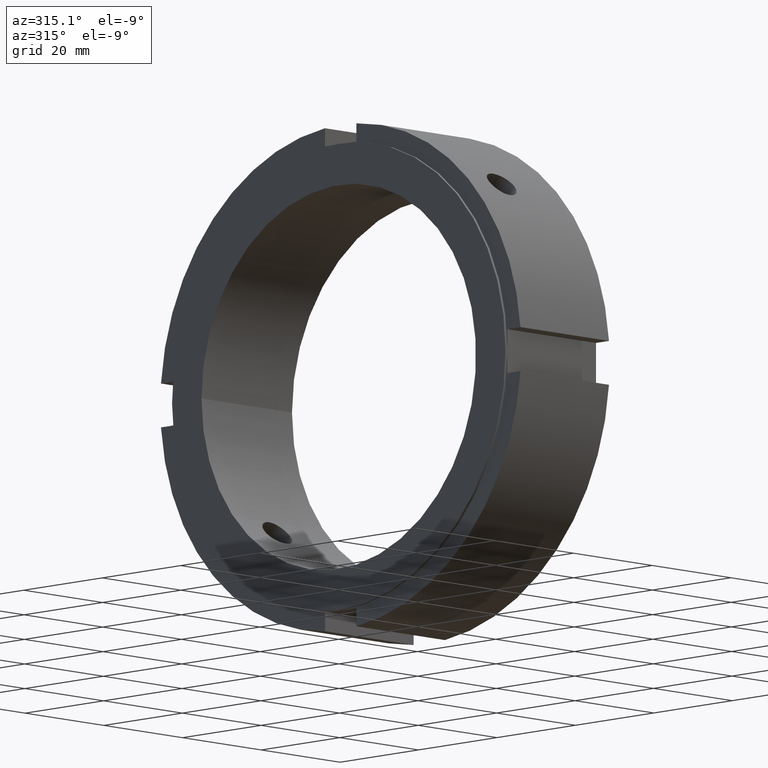
[diagram: clean part render]
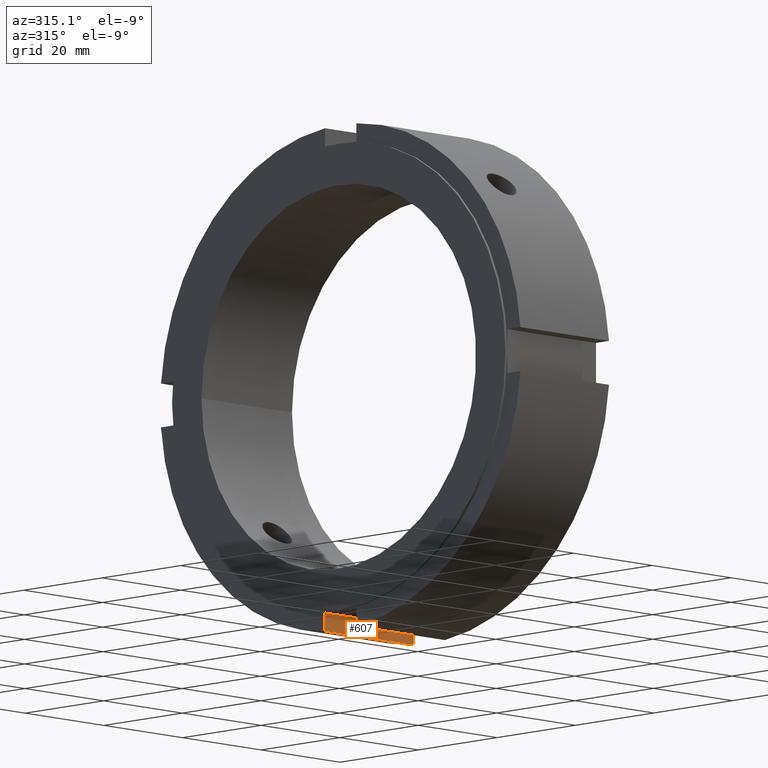
[diagram: same view with one face highlighted and labeled with its STEP entity id]
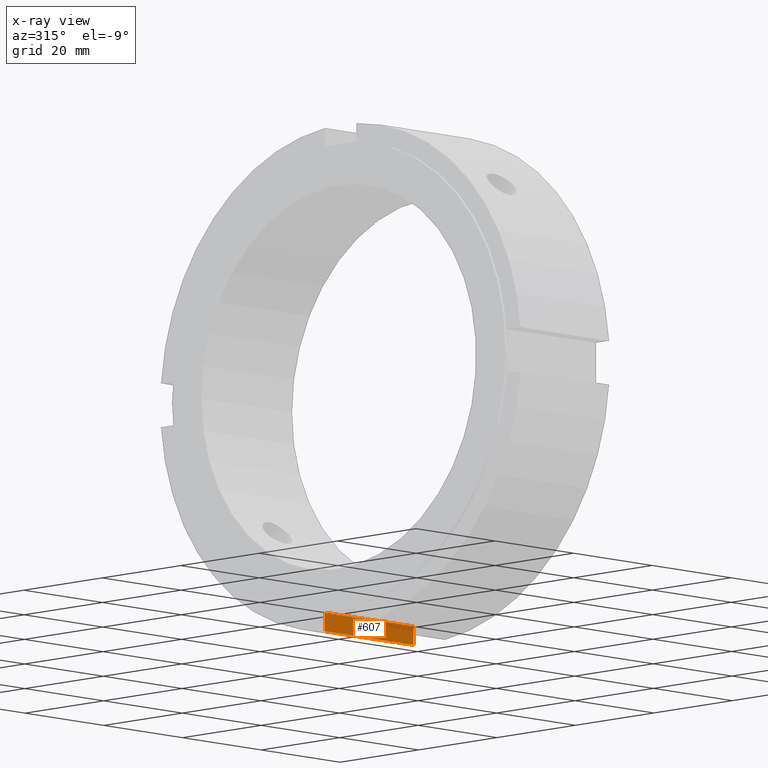
[diagram: x-ray of the same camera — body ghosted, the highlighted face saturated]
A machine part, auxiliary view. The second image highlights one B-rep face of the part: STEP entity #607.
The next image is the same camera in x-ray: the body ghosted, the highlighted face saturated — about 13% of this face is hidden behind the body in this view.
In plain terms, the highlighted planar face has unit normal (0, 1, 0).
Its self-contained STEP definition (entity closure, byte-faithful):
#568=CARTESIAN_POINT('',(22.999999999999989,3.99999999999999,-46.000000000000007));
#569=DIRECTION('',(0.0,1.0,0.0));
#570=DIRECTION('',(1.0,0.0,0.0));
#571=AXIS2_PLACEMENT_3D('',#568,#569,#570);
#572=PLANE('',#571);
#573=CARTESIAN_POINT('',(0.499999999999989,3.99999999999999,-45.825756949558411));
#574=VERTEX_POINT('',#573);
#575=CARTESIAN_POINT('',(0.499999999999989,3.99999999999999,-42.500000000000007));
#576=VERTEX_POINT('',#575);
#577=CARTESIAN_POINT('',(0.499999999999989,3.999999999999986,-45.825756949558411));
#578=DIRECTION('',(0.0,0.0,1.0));
#579=VECTOR('',#578,3.325756949558397);
#580=LINE('',#577,#579);
#581=EDGE_CURVE('',#574,#576,#580,.T.);
#582=ORIENTED_EDGE('',*,*,#581,.F.);
#583=CARTESIAN_POINT('',(22.999999999999989,3.99999999999999,-45.825756949558411));
#584=VERTEX_POINT('',#583);
#585=CARTESIAN_POINT('',(22.999999999999989,3.99999999999999,-45.825756949558411));
#586=DIRECTION('',(-1.0,0.0,0.0));
#587=VECTOR('',#586,22.5);
#588=LINE('',#585,#587);
#589=EDGE_CURVE('',#584,#574,#588,.T.);
#590=ORIENTED_EDGE('',*,*,#589,.F.);
#591=CARTESIAN_POINT('',(22.999999999999989,3.99999999999999,-42.500000000000007));
#592=VERTEX_POINT('',#591);
#593=CARTESIAN_POINT('',(22.999999999999989,3.999999999999989,-42.500000000000014));
#594=DIRECTION('',(0.0,0.0,-1.0));
#595=VECTOR('',#594,3.325756949558397);
#596=LINE('',#593,#595);
#597=EDGE_CURVE('',#592,#584,#596,.T.);
#598=ORIENTED_EDGE('',*,*,#597,.F.);
#599=CARTESIAN_POINT('',(22.999999999999989,3.99999999999999,-42.500000000000007));
#600=DIRECTION('',(-1.0,0.0,0.0));
#601=VECTOR('',#600,22.5);
#602=LINE('',#599,#601);
#603=EDGE_CURVE('',#592,#576,#602,.T.);
#604=ORIENTED_EDGE('',*,*,#603,.T.);
#605=EDGE_LOOP('',(#582,#590,#598,#604));
#606=FACE_OUTER_BOUND('',#605,.T.);
#607=ADVANCED_FACE('',(#606),#572,.F.);